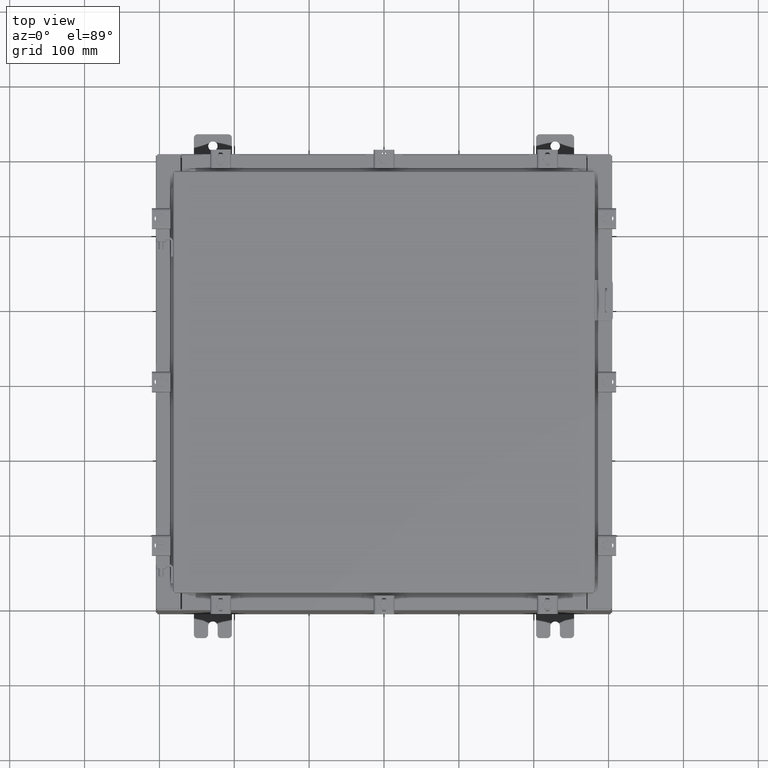
[diagram: clean part render]
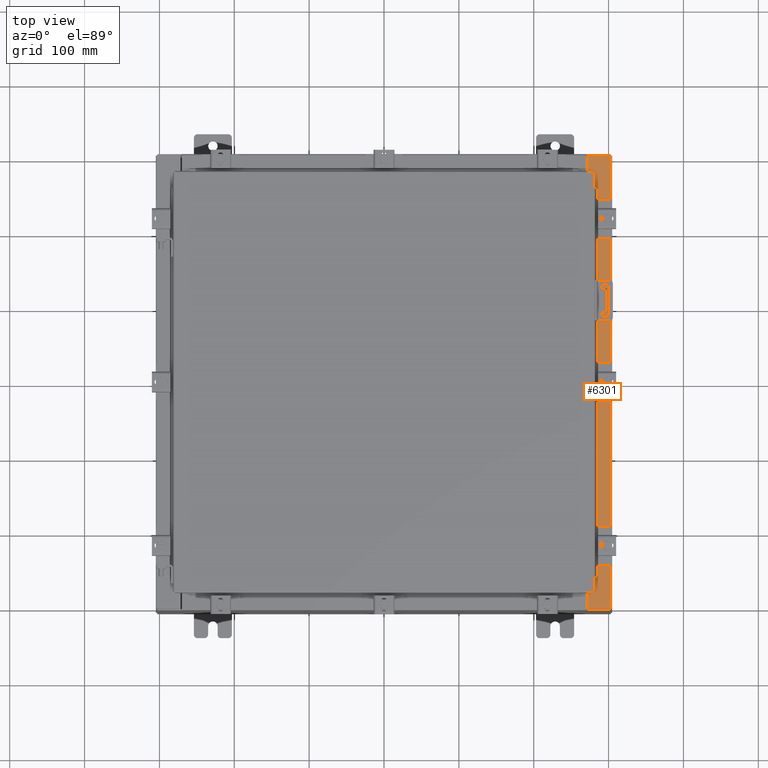
[diagram: same view with one face highlighted and labeled with its STEP entity id]
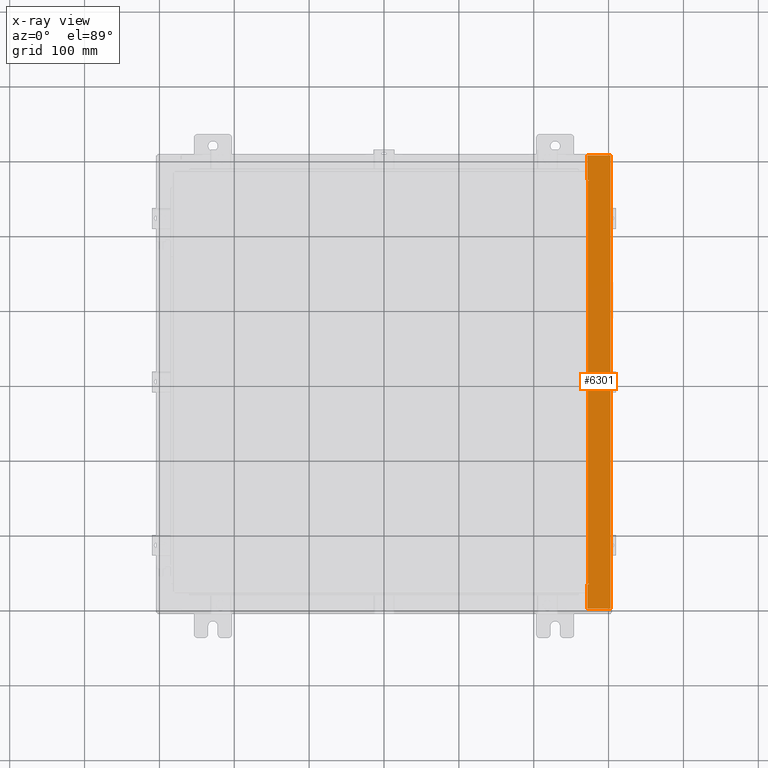
[diagram: x-ray of the same camera — body ghosted, the highlighted face saturated]
A machine part, top view. The second image highlights one B-rep face of the part: STEP entity #6301.
The next image is the same camera in x-ray: the body ghosted, the highlighted face saturated — about 0% of this face is hidden behind the body in this view.
In plain terms, the highlighted planar face has unit normal (-0, 0, -1).
Its self-contained STEP definition (entity closure, byte-faithful):
#53 = CARTESIAN_POINT ( 'NONE',  ( 10.71270000000004300, 10.59374999999998400, 11.92530000000000900 ) ) ;
#275 = VECTOR ( 'NONE', #14999, 39.37007874015748100 ) ;
#500 = CARTESIAN_POINT ( 'NONE',  ( 10.69970000000004100, -11.92530000000000400, 11.92530000000000900 ) ) ;
#675 = ORIENTED_EDGE ( 'NONE', *, *, #3072, .T. ) ;
#1153 = CARTESIAN_POINT ( 'NONE',  ( 10.75005000000004300, 10.63109999999998400, 11.92530000000000900 ) ) ;
#1162 = EDGE_CURVE ( 'NONE', #19760, #16665, #9525, .T. ) ;
#1334 = CARTESIAN_POINT ( 'NONE',  ( 11.91230000000003900, -11.92530000000000400, 11.92530000000000000 ) ) ;
#1503 = DIRECTION ( 'NONE',  ( 1.000000000000000000, 0.0000000000000000000, 0.0000000000000000000 ) ) ;
#1613 = EDGE_CURVE ( 'NONE', #6355, #17388, #21836, .T. ) ;
#1880 = LINE ( 'NONE', #21444, #6520 ) ;
#1887 = VECTOR ( 'NONE', #22119, 39.37007874015748100 ) ;
#2326 = DIRECTION ( 'NONE',  ( 0.0000000000000000000, -1.000000000000000000, 0.0000000000000000000 ) ) ;
#2574 = CARTESIAN_POINT ( 'NONE',  ( 10.71270000000004300, -10.59375000000000200, 11.92530000000000900 ) ) ;
#2709 = EDGE_CURVE ( 'NONE', #6355, #15866, #7359, .T. ) ;
#2757 = CARTESIAN_POINT ( 'NONE',  ( 10.69970000000004100, -10.63110000000000200, 11.92530000000000900 ) ) ;
#2931 = EDGE_CURVE ( 'NONE', #8561, #8545, #9776, .T. ) ;
#3072 = EDGE_CURVE ( 'NONE', #17388, #16665, #1880, .T. ) ;
#3709 = CARTESIAN_POINT ( 'NONE',  ( 10.69970000000004100, -10.63110000000000200, 11.92530000000000900 ) ) ;
#4083 = VECTOR ( 'NONE', #17640, 39.37007874015748100 ) ;
#4300 = VERTEX_POINT ( 'NONE', #2574 ) ;
#5258 = CARTESIAN_POINT ( 'NONE',  ( 10.75005000000004300, 10.63109999999998400, 11.92530000000000900 ) ) ;
#5383 = ORIENTED_EDGE ( 'NONE', *, *, #11539, .F. ) ;
#5659 = CARTESIAN_POINT ( 'NONE',  ( 10.69970000000004100, 11.92529999999999600, 11.92530000000000900 ) ) ;
#6301 = ADVANCED_FACE ( 'NONE', ( #17523 ), #8132, .F. ) ;
#6355 = VERTEX_POINT ( 'NONE', #10033 ) ;
#6408 = EDGE_CURVE ( 'NONE', #15292, #15866, #7186, .T. ) ;
#6476 = DIRECTION ( 'NONE',  ( -7.132762385546384700E-015, 0.0000000000000000000, -1.000000000000000000 ) ) ;
#6520 = VECTOR ( 'NONE', #2326, 39.37007874015748100 ) ;
#6615 = CARTESIAN_POINT ( 'NONE',  ( 8.532114493236847900E-014, 11.92529999999999600, 11.92530000000008500 ) ) ;
#6697 = DIRECTION ( 'NONE',  ( 1.000000000000000000, 0.0000000000000000000, -7.132762385546384700E-015 ) ) ;
#7186 = LINE ( 'NONE', #20635, #21064 ) ;
#7214 = VECTOR ( 'NONE', #21392, 39.37007874015748100 ) ;
#7271 = ORIENTED_EDGE ( 'NONE', *, *, #6408, .T. ) ;
#7359 = LINE ( 'NONE', #1334, #11422 ) ;
#7437 = VECTOR ( 'NONE', #10149, 39.37007874015748100 ) ;
#8132 = PLANE ( 'NONE',  #22390 ) ;
#8545 = VERTEX_POINT ( 'NONE', #21867 ) ;
#8561 = VERTEX_POINT ( 'NONE', #2757 ) ;
#9047 = DIRECTION ( 'NONE',  ( 7.132762385546384700E-015, 0.0000000000000000000, 1.000000000000000000 ) ) ;
#9525 = LINE ( 'NONE', #1153, #275 ) ;
#9776 = LINE ( 'NONE', #3709, #4083 ) ;
#9998 = DIRECTION ( 'NONE',  ( 0.0000000000000000000, -1.000000000000000000, 0.0000000000000000000 ) ) ;
#10033 = CARTESIAN_POINT ( 'NONE',  ( 11.91230000000003900, 11.92529999999999600, 11.92530000000000000 ) ) ;
#10114 = DIRECTION ( 'NONE',  ( -1.000000000000000000, 0.0000000000000000000, 7.132762385546384700E-015 ) ) ;
#10149 = DIRECTION ( 'NONE',  ( 1.000000000000000000, 0.0000000000000000000, 0.0000000000000000000 ) ) ;
#10492 = EDGE_CURVE ( 'NONE', #8561, #15292, #20279, .T. ) ;
#11367 = AXIS2_PLACEMENT_3D ( 'NONE', #19521, #9047, #21266 ) ;
#11422 = VECTOR ( 'NONE', #11757, 39.37007874015748100 ) ;
#11539 = EDGE_CURVE ( 'NONE', #4300, #14057, #11816, .T. ) ;
#11757 = DIRECTION ( 'NONE',  ( -0.0000000000000000000, -1.000000000000000000, -0.0000000000000000000 ) ) ;
#11816 = LINE ( 'NONE', #17895, #7214 ) ;
#11940 = DIRECTION ( 'NONE',  ( 7.132762385546384700E-015, 0.0000000000000000000, 1.000000000000000000 ) ) ;
#12000 = VECTOR ( 'NONE', #10114, 39.37007874015748100 ) ;
#12048 = LINE ( 'NONE', #13582, #7437 ) ;
#12382 = ORIENTED_EDGE ( 'NONE', *, *, #15914, .F. ) ;
#13582 = CARTESIAN_POINT ( 'NONE',  ( 10.71270000000004300, 10.59374999999998400, 11.92530000000000900 ) ) ;
#13929 = CARTESIAN_POINT ( 'NONE',  ( 10.69970000000004100, 10.63109999999998600, 11.92530000000000900 ) ) ;
#14057 = VERTEX_POINT ( 'NONE', #53 ) ;
#14166 = CARTESIAN_POINT ( 'NONE',  ( 11.91230000000003900, -11.92530000000000400, 11.92530000000000000 ) ) ;
#14519 = ORIENTED_EDGE ( 'NONE', *, *, #2931, .F. ) ;
#14615 = EDGE_CURVE ( 'NONE', #14057, #21894, #12048, .T. ) ;
#14999 = DIRECTION ( 'NONE',  ( -1.000000000000000000, 0.0000000000000000000, 0.0000000000000000000 ) ) ;
#15029 = ORIENTED_EDGE ( 'NONE', *, *, #20753, .F. ) ;
#15173 = CARTESIAN_POINT ( 'NONE',  ( 10.69970000000004100, 0.0000000000000000000, 11.92530000000000900 ) ) ;
#15292 = VERTEX_POINT ( 'NONE', #500 ) ;
#15633 = VECTOR ( 'NONE', #9998, 39.37007874015748100 ) ;
#15777 = LINE ( 'NONE', #20383, #1887 ) ;
#15866 = VERTEX_POINT ( 'NONE', #14166 ) ;
#15914 = EDGE_CURVE ( 'NONE', #8545, #21076, #18008, .T. ) ;
#16568 = AXIS2_PLACEMENT_3D ( 'NONE', #22378, #11940, #1503 ) ;
#16665 = VERTEX_POINT ( 'NONE', #13929 ) ;
#16886 = CARTESIAN_POINT ( 'NONE',  ( 8.532114493236847900E-014, 0.0000000000000000000, 11.92530000000008500 ) ) ;
#16987 = CIRCLE ( 'NONE', #16568, 0.01867499999999949400 ) ;
#17388 = VERTEX_POINT ( 'NONE', #5659 ) ;
#17523 = FACE_OUTER_BOUND ( 'NONE', #17927, .T. ) ;
#17640 = DIRECTION ( 'NONE',  ( 1.000000000000000000, 0.0000000000000000000, 0.0000000000000000000 ) ) ;
#17769 = CARTESIAN_POINT ( 'NONE',  ( 10.75005000000004300, -10.59375000000000200, 11.92530000000000900 ) ) ;
#17820 = ORIENTED_EDGE ( 'NONE', *, *, #10492, .T. ) ;
#17874 = ORIENTED_EDGE ( 'NONE', *, *, #2709, .F. ) ;
#17895 = CARTESIAN_POINT ( 'NONE',  ( 10.71270000000004300, -10.59374999999999800, 11.92530000000000900 ) ) ;
#17927 = EDGE_LOOP ( 'NONE', ( #14519, #17820, #7271, #17874, #21718, #675, #19010, #21803, #21583, #5383, #15029, #12382 ) ) ;
#18008 = CIRCLE ( 'NONE', #11367, 0.01867499999999949400 ) ;
#18621 = DIRECTION ( 'NONE',  ( -1.000000000000000000, 0.0000000000000000000, 7.132762385546384700E-015 ) ) ;
#19010 = ORIENTED_EDGE ( 'NONE', *, *, #1162, .F. ) ;
#19521 = CARTESIAN_POINT ( 'NONE',  ( 10.75005000000004300, -10.61242500000000200, 11.92530000000000900 ) ) ;
#19717 = CARTESIAN_POINT ( 'NONE',  ( 10.75005000000004300, 10.59374999999998400, 11.92530000000000900 ) ) ;
#19760 = VERTEX_POINT ( 'NONE', #5258 ) ;
#20170 = EDGE_CURVE ( 'NONE', #21894, #19760, #16987, .T. ) ;
#20279 = LINE ( 'NONE', #15173, #15633 ) ;
#20383 = CARTESIAN_POINT ( 'NONE',  ( 10.75005000000004300, -10.59375000000000200, 11.92530000000000900 ) ) ;
#20635 = CARTESIAN_POINT ( 'NONE',  ( 8.532114493236847900E-014, -11.92530000000000400, 11.92530000000008500 ) ) ;
#20753 = EDGE_CURVE ( 'NONE', #21076, #4300, #15777, .T. ) ;
#21064 = VECTOR ( 'NONE', #6697, 39.37007874015748100 ) ;
#21076 = VERTEX_POINT ( 'NONE', #17769 ) ;
#21266 = DIRECTION ( 'NONE',  ( 1.000000000000000000, 0.0000000000000000000, 0.0000000000000000000 ) ) ;
#21392 = DIRECTION ( 'NONE',  ( -0.0000000000000000000, 1.000000000000000000, -0.0000000000000000000 ) ) ;
#21444 = CARTESIAN_POINT ( 'NONE',  ( 10.69970000000004100, 0.0000000000000000000, 11.92530000000000900 ) ) ;
#21583 = ORIENTED_EDGE ( 'NONE', *, *, #14615, .F. ) ;
#21718 = ORIENTED_EDGE ( 'NONE', *, *, #1613, .T. ) ;
#21803 = ORIENTED_EDGE ( 'NONE', *, *, #20170, .F. ) ;
#21836 = LINE ( 'NONE', #6615, #12000 ) ;
#21867 = CARTESIAN_POINT ( 'NONE',  ( 10.75005000000004300, -10.63110000000000200, 11.92530000000000900 ) ) ;
#21894 = VERTEX_POINT ( 'NONE', #19717 ) ;
#22119 = DIRECTION ( 'NONE',  ( -1.000000000000000000, 0.0000000000000000000, 0.0000000000000000000 ) ) ;
#22378 = CARTESIAN_POINT ( 'NONE',  ( 10.75005000000004300, 10.61242499999998400, 11.92530000000000900 ) ) ;
#22390 = AXIS2_PLACEMENT_3D ( 'NONE', #16886, #6476, #18621 ) ;